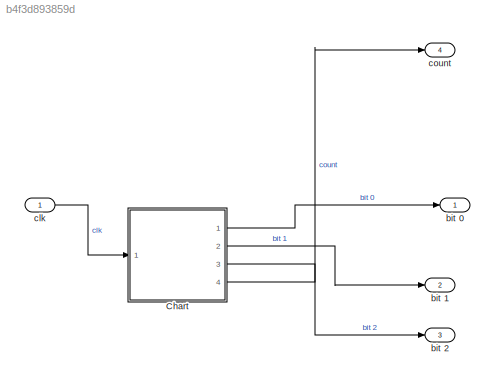
MODEL slx_b4f3d893859d
KIND model
CONFIG AbsTol = auto
CONFIG EnableMultiTasking = off
CONFIG FixedStep = 1
CONFIG MaxStep = auto
CONFIG MinStep = auto
CONFIG RelTol = 1e-3
CONFIG SampleTimeConstraint = Unconstrained
CONFIG SolverName = FixedStepAuto
CONFIG StartTime = 0.0
CONFIG StopTime = 10.0
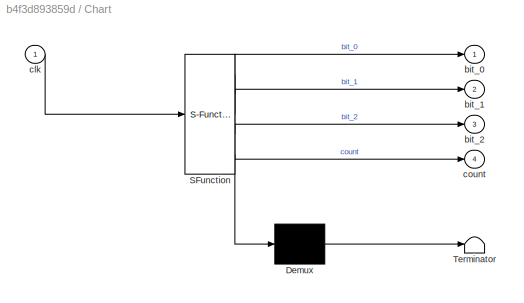
BLOCK [SubSystem] Chart
  ErrorFcn = Stateflow.Translate.translate
  PermitHierarchicalResolution = ExplicitOnly
  Ports = [1, 4]
  RequestExecContextInheritance = off
  SFBlockType = Chart
  TreatAsAtomicUnit = on
BLOCK [Demux] Chart/ Demux 
  Outputs = 1
  Ports = [1, 1]
BLOCK [S-Function] Chart/ SFunction 
  EnableBusSupport = on
  FunctionName = sf_sfun
  PortCounts = [1 5]
  Ports = [1, 5]
  SFcnIsStateOwnerBlock = off
  SFunctionDeploymentMode = off
  Tag = Stateflow S-Function 3
BLOCK [Terminator] Chart/ Terminator 
BLOCK [Outport] Chart/bit_0
BLOCK [Outport] Chart/bit_1
  Port = 2
BLOCK [Outport] Chart/bit_2
  Port = 3
BLOCK [Inport] Chart/clk
BLOCK [Outport] Chart/count
  Port = 4
BLOCK [Outport] bit 0
  OutDataTypeStr = double
  PortDimensions = 1
  SampleTime = [1,0]
  SamplingMode = Sample based
  SignalType = real
BLOCK [Outport] bit 1
  OutDataTypeStr = double
  Port = 2
  PortDimensions = 1
  SampleTime = [1,0]
  SamplingMode = Sample based
  SignalType = real
BLOCK [Outport] bit 2
  OutDataTypeStr = double
  Port = 3
  PortDimensions = 1
  SampleTime = [1,0]
  SamplingMode = Sample based
  SignalType = real
BLOCK [Inport] clk
  OutDataTypeStr = double
  PortDimensions = 1
  SampleTime = [1,0]
  SamplingMode = Sample based
  SignalType = real
BLOCK [Outport] count
  OutDataTypeStr = double
  Port = 4
  PortDimensions = 1
  SampleTime = [1,0]
  SamplingMode = Sample based
  SignalType = real
LINE Chart:1 -> bit 0:1
LINE Chart:2 -> bit 1:1
LINE Chart:3 -> bit 2:1
LINE Chart:4 -> count:1
LINE clk:1 -> Chart:1
CHART Chart states=5 transitions=6
  STATE_LABEL 'STATE0\nentry:\nbit_0 = 0;\nbit_1 = 0;\nbit_2 = 0;\nexit:\ncount = 0;'
  STATE_LABEL 'STATE1\nentry:\nbit_0 =1;\nbit_1 = 0;\nbit_2 = 0;\nexit:\ncount = 1;'
  STATE_LABEL 'STATE5\nentry:\nbit_0=0;\nbit_1=0;\nbit_2=1;\nexit:\ncount = 4;\n'
  STATE_LABEL 'STATE2\nentry:\nbit_0 = 0;\nbit_1 = 1;\nbit_2 =0;\nexit:\ncount=2;'
  STATE_LABEL 'STATE3\nentry:\nbit_0 =1;\nbit_1 =1;\nbit_2 = 0;\nexit:\ncount=3;'
CHART  states=0 transitions=0
